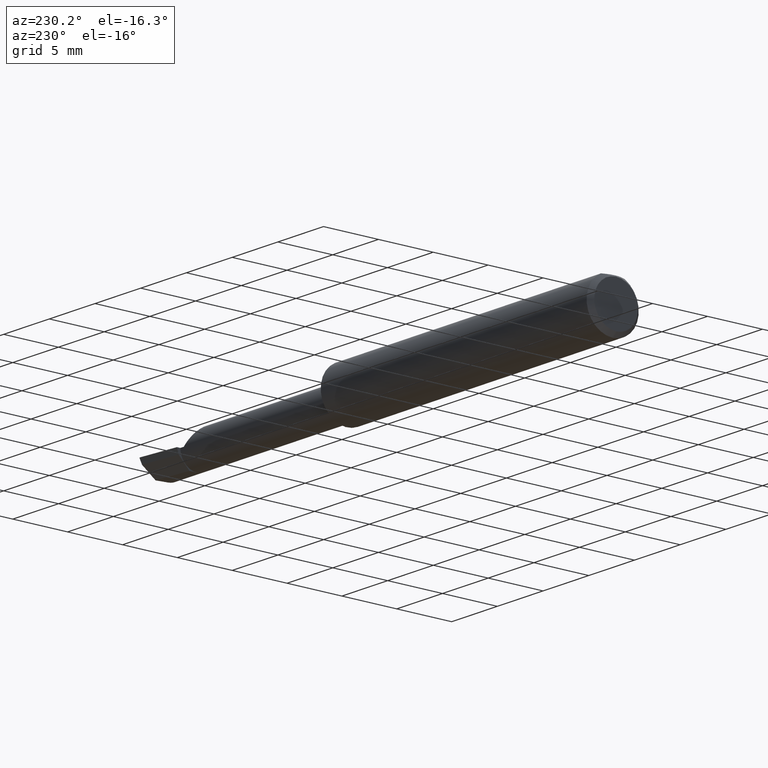
[diagram: clean part render]
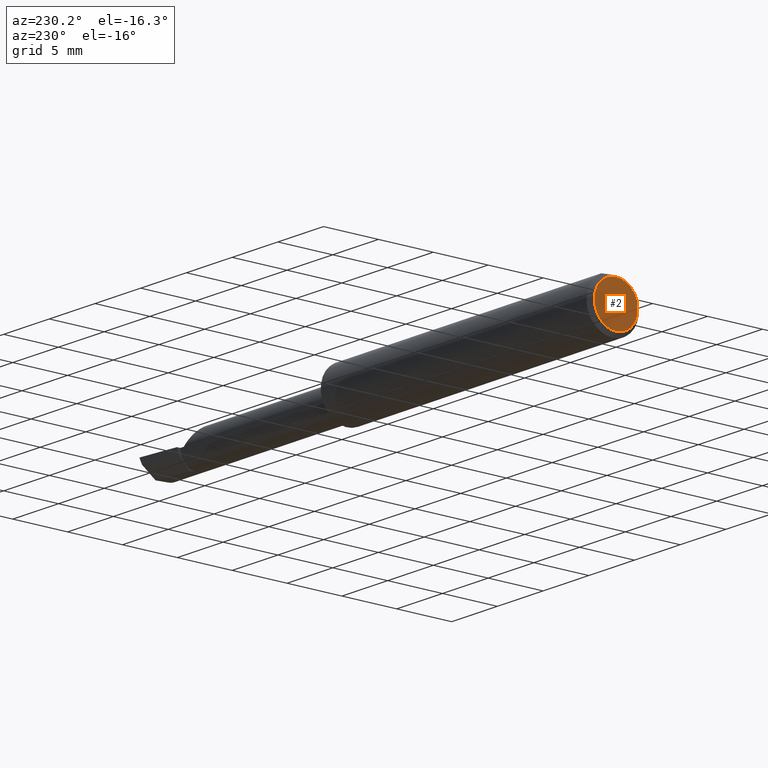
[diagram: same view with one face highlighted and labeled with its STEP entity id]
A machine part, auxiliary view. The second image highlights one B-rep face of the part: STEP entity #2.
In plain terms, the highlighted planar face has unit normal (1, 0, 0).
Its self-contained STEP definition (entity closure, byte-faithful):
#2 = ADVANCED_FACE ( 'NONE', ( #275 ), #384, .F. ) ;
#6 = DIRECTION ( 'NONE',  ( 0.000000000000000000, 0.000000000000000000, -1.000000000000000000 ) ) ;
#30 = VERTEX_POINT ( 'NONE', #412 ) ;
#34 = EDGE_LOOP ( 'NONE', ( #498, #349 ) ) ;
#67 = CARTESIAN_POINT ( 'NONE',  ( 0.000000000000000000, 0.000000000000000000, 0.000000000000000000 ) ) ;
#72 = DIRECTION ( 'NONE',  ( -1.000000000000000000, -0.000000000000000000, -0.000000000000000000 ) ) ;
#106 = CIRCLE ( 'NONE', #426, 0.07859999999999965625 ) ;
#115 = AXIS2_PLACEMENT_3D ( 'NONE', #158, #431, #536 ) ;
#158 = CARTESIAN_POINT ( 'NONE',  ( 0.000000000000000000, 0.000000000000000000, 0.000000000000000000 ) ) ;
#245 = DIRECTION ( 'NONE',  ( 0.000000000000000000, 0.000000000000000000, 1.000000000000000000 ) ) ;
#263 = CARTESIAN_POINT ( 'NONE',  ( 0.000000000000000000, 0.000000000000000000, -0.07859999999999965625 ) ) ;
#275 = FACE_OUTER_BOUND ( 'NONE', #34, .T. ) ;
#285 = DIRECTION ( 'NONE',  ( 1.000000000000000000, 0.000000000000000000, 0.000000000000000000 ) ) ;
#325 = EDGE_CURVE ( 'NONE', #554, #30, #106, .T. ) ;
#332 = CIRCLE ( 'NONE', #115, 0.07859999999999965625 ) ;
#349 = ORIENTED_EDGE ( 'NONE', *, *, #585, .T. ) ;
#384 = PLANE ( 'NONE',  #609 ) ;
#412 = CARTESIAN_POINT ( 'NONE',  ( 0.000000000000000000, 1.054420894065869177E-17, 0.07859999999999965625 ) ) ;
#426 = AXIS2_PLACEMENT_3D ( 'NONE', #550, #72, #245 ) ;
#431 = DIRECTION ( 'NONE',  ( -1.000000000000000000, -0.000000000000000000, -0.000000000000000000 ) ) ;
#498 = ORIENTED_EDGE ( 'NONE', *, *, #325, .T. ) ;
#536 = DIRECTION ( 'NONE',  ( 0.000000000000000000, 0.000000000000000000, 1.000000000000000000 ) ) ;
#550 = CARTESIAN_POINT ( 'NONE',  ( 0.000000000000000000, 0.000000000000000000, 0.000000000000000000 ) ) ;
#554 = VERTEX_POINT ( 'NONE', #263 ) ;
#585 = EDGE_CURVE ( 'NONE', #30, #554, #332, .T. ) ;
#609 = AXIS2_PLACEMENT_3D ( 'NONE', #67, #285, #6 ) ;